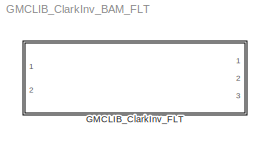
MODEL GMCLIB_ClarkInv_BAM_FLT
KIND model
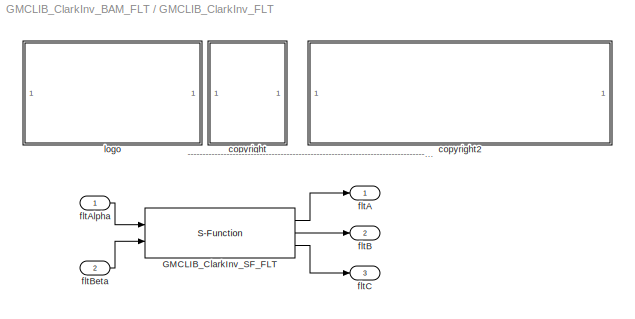
BLOCK [SubSystem] GMCLIB_ClarkInv_FLT
  FunctionWithSeparateData = off
  MaskDescription = Bit accurate model of inverse Clarke transformation 2ph -> 3ph
  MaskDisplay = color('black');port_label('input',1,'fltAlpha');port_label('input',2,'fltBeta');port_label('output',1,'fltA');port_label('output',2,'fltB');port_label('output',3,'fltC');color('black');disp('GMCLIB_ClarkInv_FLT');color('blue');text(tX,tY, 'BAM', 'horizontalAlignment', 'center');
  MaskHideContents = off
  MaskIconFrame = on
  MaskIconOpaque = on
  MaskIconRotate = none
  MaskIconUnits = pixels
  MaskInitialization = pos = get_param(gcb, 'Position');width = pos(3) - pos(1); height = pos(4) - pos(2);tX=width/2;tY=height*0.9;
  MaskPortRotate = default
  MaskType = GMCLIB_ClarkInv_FLT
  MinAlgLoopOccurrences = off
  Opaque = off
  Ports = [2, 3]
  PropExecContextOutsideSubsystem = off
  RTWSystemCode = Auto
  RequestExecContextInheritance = off
BLOCK [S-Function] GMCLIB_ClarkInv_FLT/GMCLIB_ClarkInv_SF_FLT
  EnableBusSupport = off
  FunctionName = GMCLIB_ClarkInv_SF_FLT
  Ports = [2, 3]
BLOCK [SubSystem] GMCLIB_ClarkInv_FLT/<copyright redacted>
  FunctionWithSeparateData = off
  MaskDisplay = text(10,90,'FILE:');text(10,75,'DESRIPTION:')text(10,60,'<copyright redacted>
  MaskHideContents = off
  MaskIconFrame = off
  MaskIconOpaque = on
  MaskIconRotate = none
  MaskIconUnits = pixels
  MaskPortRotate = default
  MinAlgLoopOccurrences = off
  Opaque = off
  Ports = []
  PropExecContextOutsideSubsystem = off
  RTWSystemCode = Auto
  RequestExecContextInheritance = off
BLOCK [SubSystem] GMCLIB_ClarkInv_FLT/copyright2
  FunctionWithSeparateData = off
  MaskDisplay = text(10,90,'GMCLIB_ClarkInv_BAM_FLT.mdl');text(10,75,'Inverse Clarke transformation');text(10,60,'Freescale')text(10,45,'0.1');text(10,30,'30-Aug-2011');
  MaskHideContents = off
  MaskIconFrame = off
  MaskIconOpaque = on
  MaskIconRotate = none
  MaskIconUnits = pixels
  MaskPortRotate = default
  MinAlgLoopOccurrences = off
  Opaque = off
  Ports = []
  PropExecContextOutsideSubsystem = off
  RTWSystemCode = Auto
  RequestExecContextInheritance = off
BLOCK [Outport] GMCLIB_ClarkInv_FLT/fltA
  IconDisplay = Port number
  OutDataType = fixdt(1, 16)
  OutScaling = 2^0
BLOCK [Inport] GMCLIB_ClarkInv_FLT/fltAlpha
  IconDisplay = Port number
  OutDataType = fixdt(1, 16)
  OutScaling = 2^0
BLOCK [Outport] GMCLIB_ClarkInv_FLT/fltB
  IconDisplay = Port number
  OutDataType = fixdt(1, 16)
  OutScaling = 2^0
  Port = 2
BLOCK [Inport] GMCLIB_ClarkInv_FLT/fltBeta
  IconDisplay = Port number
  OutDataType = fixdt(1, 16)
  OutScaling = 2^0
  Port = 2
BLOCK [Outport] GMCLIB_ClarkInv_FLT/fltC
  IconDisplay = Port number
  OutDataType = fixdt(1, 16)
  OutScaling = 2^0
  Port = 3
BLOCK [SubSystem] GMCLIB_ClarkInv_FLT/logo
  FunctionWithSeparateData = off
  MaskDisplay = image(imread('logo.jpg'))
  MaskHideContents = off
  MaskIconFrame = off
  MaskIconOpaque = on
  MaskIconRotate = none
  MaskIconUnits = autoscale
  MaskPortRotate = default
  MinAlgLoopOccurrences = off
  Opaque = off
  Ports = []
  PropExecContextOutsideSubsystem = off
  RTWSystemCode = Auto
  RequestExecContextInheritance = off
ANNOTATION GMCLIB_ClarkInv_FLT: ---------------------------------------------------------------------------------------------------------------------------------------------------------------------------------------------------
LINE GMCLIB_ClarkInv_FLT/GMCLIB_ClarkInv_SF_FLT:1 -> GMCLIB_ClarkInv_FLT/fltA:1
LINE GMCLIB_ClarkInv_FLT/GMCLIB_ClarkInv_SF_FLT:2 -> GMCLIB_ClarkInv_FLT/fltB:1
LINE GMCLIB_ClarkInv_FLT/GMCLIB_ClarkInv_SF_FLT:3 -> GMCLIB_ClarkInv_FLT/fltC:1
LINE GMCLIB_ClarkInv_FLT/fltAlpha:1 -> GMCLIB_ClarkInv_FLT/GMCLIB_ClarkInv_SF_FLT:1
LINE GMCLIB_ClarkInv_FLT/fltBeta:1 -> GMCLIB_ClarkInv_FLT/GMCLIB_ClarkInv_SF_FLT:2
